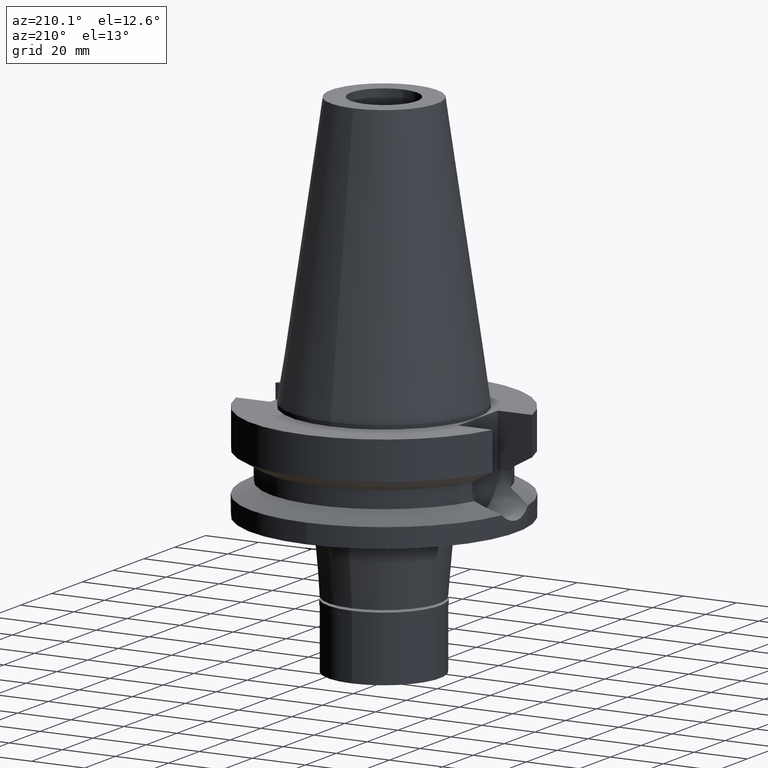
[diagram: clean part render]
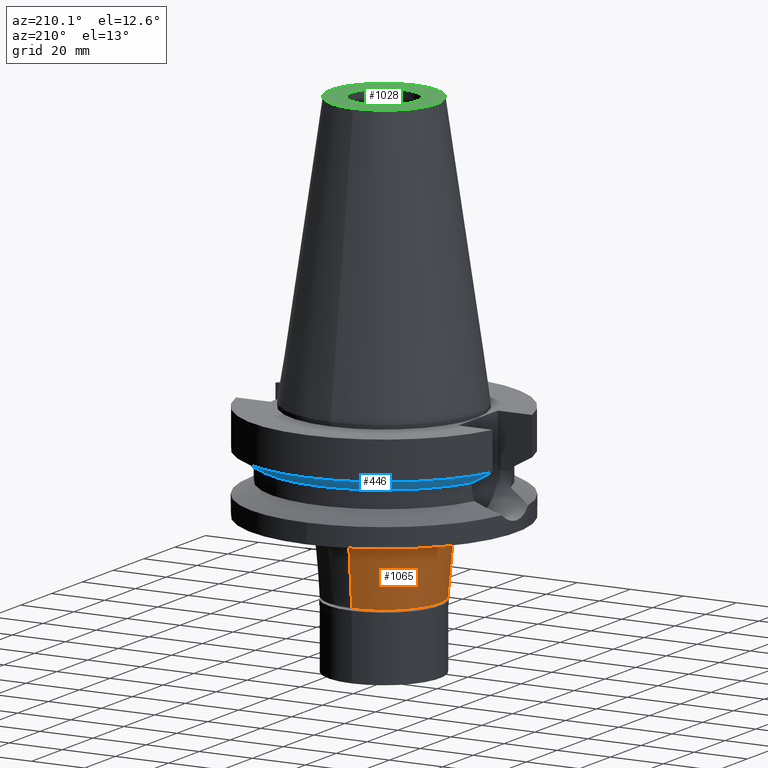
[diagram: same view with three faces highlighted in distinct colors, each labeled with its STEP entity id]
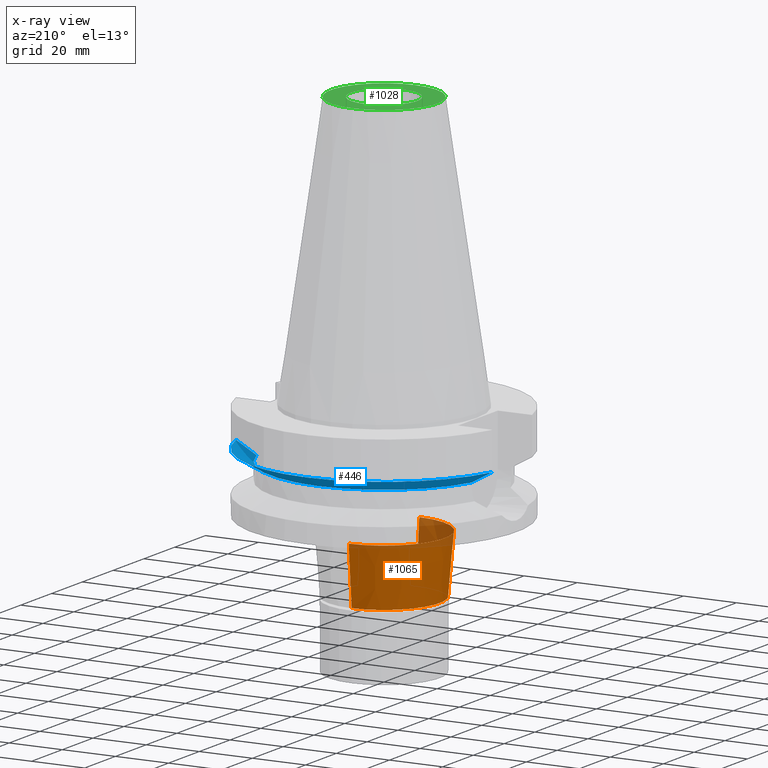
[diagram: x-ray of the same camera — body ghosted, the three highlighted faces saturated]
A machine part, auxiliary view with three faces highlighted in distinct colors.
The next image is the same camera in x-ray (body ghosted, the three faces saturated) — at least one of them is partly hidden behind the body in this view.
Their STEP definitions:

[orange] entity #1065 — the highlighted conical surface has half-angle 5 deg.
#83 = CARTESIAN_POINT ( 'NONE',  ( 0.0000000000000000000, -22.91600173121999973, -43.00000000000000000 ) ) ;
#91 = LINE ( 'NONE', #557, #2103 ) ;
#168 = VERTEX_POINT ( 'NONE', #286 ) ;
#242 = VERTEX_POINT ( 'NONE', #2001 ) ;
#286 = CARTESIAN_POINT ( 'NONE',  ( 0.0000000000000000000, -22.91600173121999973, -43.00000000000000000 ) ) ;
#412 = ORIENTED_EDGE ( 'NONE', *, *, #2164, .T. ) ;
#484 = VERTEX_POINT ( 'NONE', #1553 ) ;
#557 = CARTESIAN_POINT ( 'NONE',  ( 0.0000000000000000000, 22.91600173121999973, -43.00000000000000000 ) ) ;
#637 = AXIS2_PLACEMENT_3D ( 'NONE', #1053, #2007, #2984 ) ;
#652 = CARTESIAN_POINT ( 'NONE',  ( 0.0000000000000000000, 0.0000000000000000000, -53.94999999999999574 ) ) ;
#758 = LINE ( 'NONE', #83, #1163 ) ;
#1043 = DIRECTION ( 'NONE',  ( 0.0000000000000000000, 0.0000000000000000000, 1.000000000000000000 ) ) ;
#1053 = CARTESIAN_POINT ( 'NONE',  ( 0.0000000000000000000, 0.0000000000000000000, -43.00000000000000000 ) ) ;
#1065 = ADVANCED_FACE ( 'NONE', ( #2866 ), #2713, .T. ) ;
#1119 = AXIS2_PLACEMENT_3D ( 'NONE', #1766, #2033, #1299 ) ;
#1163 = VECTOR ( 'NONE', #1982, 1000.000000000000000 ) ;
#1299 = DIRECTION ( 'NONE',  ( 0.0000000000000000000, 1.000000000000000000, 0.0000000000000000000 ) ) ;
#1544 = EDGE_CURVE ( 'NONE', #2206, #242, #2661, .T. ) ;
#1553 = CARTESIAN_POINT ( 'NONE',  ( 0.0000000000000000000, 22.91600173121999973, -43.00000000000000000 ) ) ;
#1560 = CARTESIAN_POINT ( 'NONE',  ( 0.0000000000000000000, 21.00000000000000000, -64.90000000000000568 ) ) ;
#1663 = ORIENTED_EDGE ( 'NONE', *, *, #2823, .T. ) ;
#1749 = DIRECTION ( 'NONE',  ( 0.0000000000000000000, -0.08715574274770356011, -0.9961946980917415484 ) ) ;
#1766 = CARTESIAN_POINT ( 'NONE',  ( 0.0000000000000000000, 0.0000000000000000000, -64.90000000000000568 ) ) ;
#1773 = ORIENTED_EDGE ( 'NONE', *, *, #1544, .T. ) ;
#1809 = ORIENTED_EDGE ( 'NONE', *, *, #2423, .F. ) ;
#1982 = DIRECTION ( 'NONE',  ( 0.0000000000000000000, 0.08715574274770356011, -0.9961946980917415484 ) ) ;
#2001 = CARTESIAN_POINT ( 'NONE',  ( 0.0000000000000000000, -21.00000000000000000, -64.90000000000000568 ) ) ;
#2007 = DIRECTION ( 'NONE',  ( 0.0000000000000000000, 0.0000000000000000000, -1.000000000000000000 ) ) ;
#2033 = DIRECTION ( 'NONE',  ( 0.0000000000000000000, 0.0000000000000000000, 1.000000000000000000 ) ) ;
#2103 = VECTOR ( 'NONE', #1749, 1000.000000000000000 ) ;
#2164 = EDGE_CURVE ( 'NONE', #168, #484, #2970, .T. ) ;
#2206 = VERTEX_POINT ( 'NONE', #1560 ) ;
#2423 = EDGE_CURVE ( 'NONE', #168, #242, #758, .T. ) ;
#2661 = CIRCLE ( 'NONE', #1119, 21.00000000000000000 ) ;
#2713 = CONICAL_SURFACE ( 'NONE', #2811, 21.95800086560999986, 0.08726646259969973729 ) ;
#2811 = AXIS2_PLACEMENT_3D ( 'NONE', #652, #1043, #3005 ) ;
#2823 = EDGE_CURVE ( 'NONE', #484, #2206, #91, .T. ) ;
#2866 = FACE_OUTER_BOUND ( 'NONE', #2995, .T. ) ;
#2970 = CIRCLE ( 'NONE', #637, 22.91600173121999973 ) ;
#2984 = DIRECTION ( 'NONE',  ( 0.0000000000000000000, -1.000000000000000000, 0.0000000000000000000 ) ) ;
#2995 = EDGE_LOOP ( 'NONE', ( #1773, #1809, #412, #1663 ) ) ;
#3005 = DIRECTION ( 'NONE',  ( 0.0000000000000000000, 1.000000000000000000, 0.0000000000000000000 ) ) ;

[blue] entity #446 — the highlighted conical surface has half-angle 60 deg.
#205 = B_SPLINE_CURVE_WITH_KNOTS ( 'NONE', 3,
 ( #291, #2229, #516, #967 ),
 .UNSPECIFIED., .F., .F.,
 ( 4, 4 ),
 ( 0.0000000000000000000, 1.000000000000000000 ),
 .UNSPECIFIED. ) ;
#215 = B_SPLINE_CURVE_WITH_KNOTS ( 'NONE', 3,
 ( #2294, #2030, #3012, #2020 ),
 .UNSPECIFIED., .F., .F.,
 ( 4, 4 ),
 ( 0.0000000000000000000, 1.000000000000000000 ),
 .UNSPECIFIED. ) ;
#266 = VERTEX_POINT ( 'NONE', #561 ) ;
#277 = CARTESIAN_POINT ( 'NONE',  ( 0.0000000000000000000, 1.006319759053999930E-14, -17.82775574519000017 ) ) ;
#291 = CARTESIAN_POINT ( 'NONE',  ( 48.32056913368000295, 12.85000383647000000, -15.66265786894999934 ) ) ;
#320 = VERTEX_POINT ( 'NONE', #2181 ) ;
#339 = AXIS2_PLACEMENT_3D ( 'NONE', #277, #1248, #2140 ) ;
#446 = ADVANCED_FACE ( 'NONE', ( #1712 ), #2853, .T. ) ;
#516 = CARTESIAN_POINT ( 'NONE',  ( 42.90862371229115979, 12.84999296130076551, -18.67324848347193367 ) ) ;
#561 = CARTESIAN_POINT ( 'NONE',  ( 40.51083300001999987, 12.84999648423000096, -19.99284623576999920 ) ) ;
#803 = VERTEX_POINT ( 'NONE', #1629 ) ;
#958 = DIRECTION ( 'NONE',  ( 0.0000000000000000000, 0.0000000000000000000, 1.000000000000000000 ) ) ;
#967 = CARTESIAN_POINT ( 'NONE',  ( 40.51083300001999987, 12.84999648423000096, -19.99284623576999920 ) ) ;
#1073 = VERTEX_POINT ( 'NONE', #2847 ) ;
#1136 = EDGE_LOOP ( 'NONE', ( #1600, #3031, #2336, #1924 ) ) ;
#1151 = EDGE_CURVE ( 'NONE', #803, #320, #2041, .T. ) ;
#1175 = CARTESIAN_POINT ( 'NONE',  ( 0.0000000000000000000, 1.006319759053999930E-14, -15.66269223573000069 ) ) ;
#1248 = DIRECTION ( 'NONE',  ( 0.0000000000000000000, 0.0000000000000000000, 1.000000000000000000 ) ) ;
#1600 = ORIENTED_EDGE ( 'NONE', *, *, #1151, .F. ) ;
#1629 = CARTESIAN_POINT ( 'NONE',  ( 48.32056913368000295, 12.85000383647000000, -15.66265786894999934 ) ) ;
#1712 = FACE_OUTER_BOUND ( 'NONE', #1136, .T. ) ;
#1907 = DIRECTION ( 'NONE',  ( 0.0000000000000000000, 0.0000000000000000000, -1.000000000000000000 ) ) ;
#1924 = ORIENTED_EDGE ( 'NONE', *, *, #2122, .T. ) ;
#2020 = CARTESIAN_POINT ( 'NONE',  ( -48.32056913507000218, 12.85000383122999956, -15.66265791589999878 ) ) ;
#2030 = CARTESIAN_POINT ( 'NONE',  ( -42.90863120889557081, 12.84999293671010712, -18.67324433054261590 ) ) ;
#2041 = CIRCLE ( 'NONE', #2467, 50.00000000000000000 ) ;
#2122 = EDGE_CURVE ( 'NONE', #1073, #320, #215, .T. ) ;
#2140 = DIRECTION ( 'NONE',  ( 0.0000000000000000000, 1.000000000000000000, 0.0000000000000000000 ) ) ;
#2181 = CARTESIAN_POINT ( 'NONE',  ( -48.32056913507000218, 12.85000383122999956, -15.66265791589999878 ) ) ;
#2229 = CARTESIAN_POINT ( 'NONE',  ( 45.51179788079477362, 12.85000766831913843, -17.22986769817288888 ) ) ;
#2294 = CARTESIAN_POINT ( 'NONE',  ( -40.51083188481999997, 12.84999999999999964, -19.99281925464999787 ) ) ;
#2326 = EDGE_CURVE ( 'NONE', #803, #266, #205, .T. ) ;
#2336 = ORIENTED_EDGE ( 'NONE', *, *, #2756, .F. ) ;
#2346 = DIRECTION ( 'NONE',  ( 0.0000000000000000000, 1.000000000000000000, 0.0000000000000000000 ) ) ;
#2467 = AXIS2_PLACEMENT_3D ( 'NONE', #1175, #958, #2346 ) ;
#2640 = CARTESIAN_POINT ( 'NONE',  ( 0.0000000000000000000, 1.006319759053999930E-14, -19.99281925464999787 ) ) ;
#2665 = AXIS2_PLACEMENT_3D ( 'NONE', #2640, #1907, #3044 ) ;
#2756 = EDGE_CURVE ( 'NONE', #1073, #266, #3034, .T. ) ;
#2847 = CARTESIAN_POINT ( 'NONE',  ( -40.51083188481999997, 12.84999999999999964, -19.99281925464999787 ) ) ;
#2853 = CONICAL_SURFACE ( 'NONE', #339, 46.25000000000000000, 1.047197551196400456 ) ;
#3012 = CARTESIAN_POINT ( 'NONE',  ( -45.51180185618470375, 12.85000765784040588, -17.22986548167279963 ) ) ;
#3031 = ORIENTED_EDGE ( 'NONE', *, *, #2326, .T. ) ;
#3034 = CIRCLE ( 'NONE', #2665, 42.50000000000002132 ) ;
#3044 = DIRECTION ( 'NONE',  ( -0.9531960443486575674, 0.3023529411764863672, 0.0000000000000000000 ) ) ;

[green] entity #1028 — the highlighted planar face has unit normal (0, 0, -1).
#108 = CIRCLE ( 'NONE', #2314, 20.07942971896000017 ) ;
#156 = DIRECTION ( 'NONE',  ( 0.0000000000000000000, 0.0000000000000000000, -1.000000000000000000 ) ) ;
#263 = DIRECTION ( 'NONE',  ( 0.0000000000000000000, 0.0000000000000000000, 1.000000000000000000 ) ) ;
#276 = CARTESIAN_POINT ( 'NONE',  ( 0.0000000000000000000, -20.07942971896000017, 101.7999999999999972 ) ) ;
#323 = DIRECTION ( 'NONE',  ( 0.0000000000000000000, 0.0000000000000000000, 1.000000000000000000 ) ) ;
#420 = CARTESIAN_POINT ( 'NONE',  ( 0.0000000000000000000, 2.471337240678999545E-14, 101.7999999999999972 ) ) ;
#544 = VERTEX_POINT ( 'NONE', #1492 ) ;
#551 = ORIENTED_EDGE ( 'NONE', *, *, #1393, .F. ) ;
#597 = EDGE_CURVE ( 'NONE', #2387, #1860, #1996, .T. ) ;
#842 = CIRCLE ( 'NONE', #1353, 12.50000000000000000 ) ;
#876 = FACE_OUTER_BOUND ( 'NONE', #1051, .T. ) ;
#927 = ORIENTED_EDGE ( 'NONE', *, *, #1295, .F. ) ;
#931 = EDGE_CURVE ( 'NONE', #544, #2898, #842, .T. ) ;
#942 = EDGE_LOOP ( 'NONE', ( #551, #2150 ) ) ;
#1028 = ADVANCED_FACE ( 'NONE', ( #876, #1395 ), #1693, .F. ) ;
#1051 = EDGE_LOOP ( 'NONE', ( #1812, #927 ) ) ;
#1110 = AXIS2_PLACEMENT_3D ( 'NONE', #2312, #156, #3046 ) ;
#1263 = CIRCLE ( 'NONE', #2047, 12.50000000000000000 ) ;
#1295 = EDGE_CURVE ( 'NONE', #1860, #2387, #108, .T. ) ;
#1353 = AXIS2_PLACEMENT_3D ( 'NONE', #2213, #323, #2457 ) ;
#1393 = EDGE_CURVE ( 'NONE', #2898, #544, #1263, .T. ) ;
#1395 = FACE_BOUND ( 'NONE', #942, .T. ) ;
#1492 = CARTESIAN_POINT ( 'NONE',  ( 0.0000000000000000000, -12.50000000000000000, 101.7999999999999972 ) ) ;
#1693 = PLANE ( 'NONE',  #3022 ) ;
#1732 = CARTESIAN_POINT ( 'NONE',  ( 0.0000000000000000000, 2.584188443221000028E-14, 101.7999999999999972 ) ) ;
#1812 = ORIENTED_EDGE ( 'NONE', *, *, #597, .F. ) ;
#1860 = VERTEX_POINT ( 'NONE', #276 ) ;
#1962 = DIRECTION ( 'NONE',  ( 0.0000000000000000000, -1.000000000000000000, 0.0000000000000000000 ) ) ;
#1995 = DIRECTION ( 'NONE',  ( 0.0000000000000000000, -1.000000000000000000, 0.0000000000000000000 ) ) ;
#1996 = CIRCLE ( 'NONE', #1110, 20.07942971896000017 ) ;
#2047 = AXIS2_PLACEMENT_3D ( 'NONE', #1732, #263, #2183 ) ;
#2057 = CARTESIAN_POINT ( 'NONE',  ( 0.0000000000000000000, 12.50000000000000000, 101.7999999999999972 ) ) ;
#2150 = ORIENTED_EDGE ( 'NONE', *, *, #931, .F. ) ;
#2183 = DIRECTION ( 'NONE',  ( 0.0000000000000000000, 1.000000000000000000, 0.0000000000000000000 ) ) ;
#2213 = CARTESIAN_POINT ( 'NONE',  ( 0.0000000000000000000, 2.584188443221000028E-14, 101.7999999999999972 ) ) ;
#2312 = CARTESIAN_POINT ( 'NONE',  ( 0.0000000000000000000, 1.847992019912999597E-14, 101.7999999999999972 ) ) ;
#2314 = AXIS2_PLACEMENT_3D ( 'NONE', #2484, #2639, #1962 ) ;
#2387 = VERTEX_POINT ( 'NONE', #2927 ) ;
#2457 = DIRECTION ( 'NONE',  ( 0.0000000000000000000, -1.000000000000000000, 0.0000000000000000000 ) ) ;
#2484 = CARTESIAN_POINT ( 'NONE',  ( 0.0000000000000000000, 1.847992019912999597E-14, 101.7999999999999972 ) ) ;
#2639 = DIRECTION ( 'NONE',  ( 0.0000000000000000000, 0.0000000000000000000, -1.000000000000000000 ) ) ;
#2898 = VERTEX_POINT ( 'NONE', #2057 ) ;
#2927 = CARTESIAN_POINT ( 'NONE',  ( 0.0000000000000000000, 20.07942971896000017, 101.7999999999999972 ) ) ;
#2954 = DIRECTION ( 'NONE',  ( 0.0000000000000000000, 0.0000000000000000000, -1.000000000000000000 ) ) ;
#3022 = AXIS2_PLACEMENT_3D ( 'NONE', #420, #2954, #1995 ) ;
#3046 = DIRECTION ( 'NONE',  ( 0.0000000000000000000, 1.000000000000000000, 0.0000000000000000000 ) ) ;